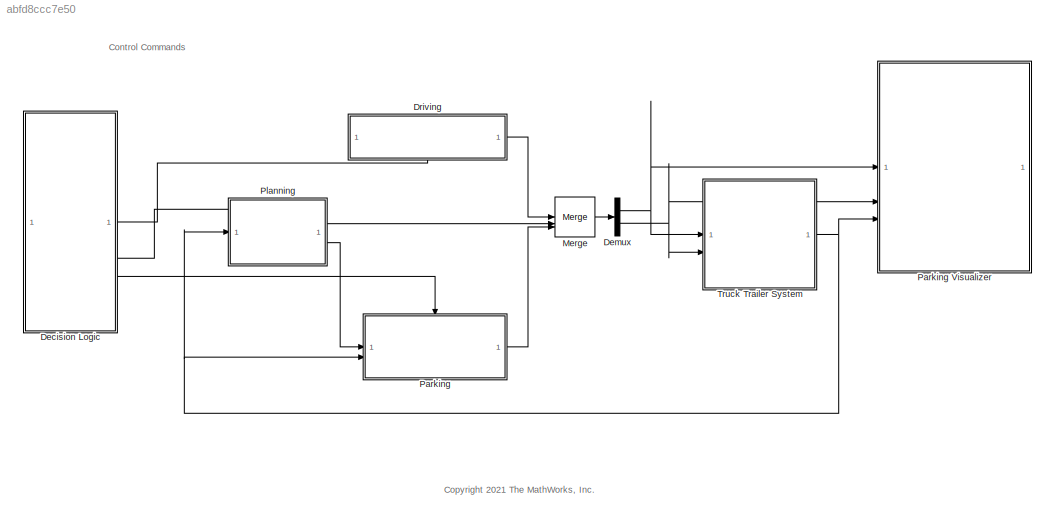
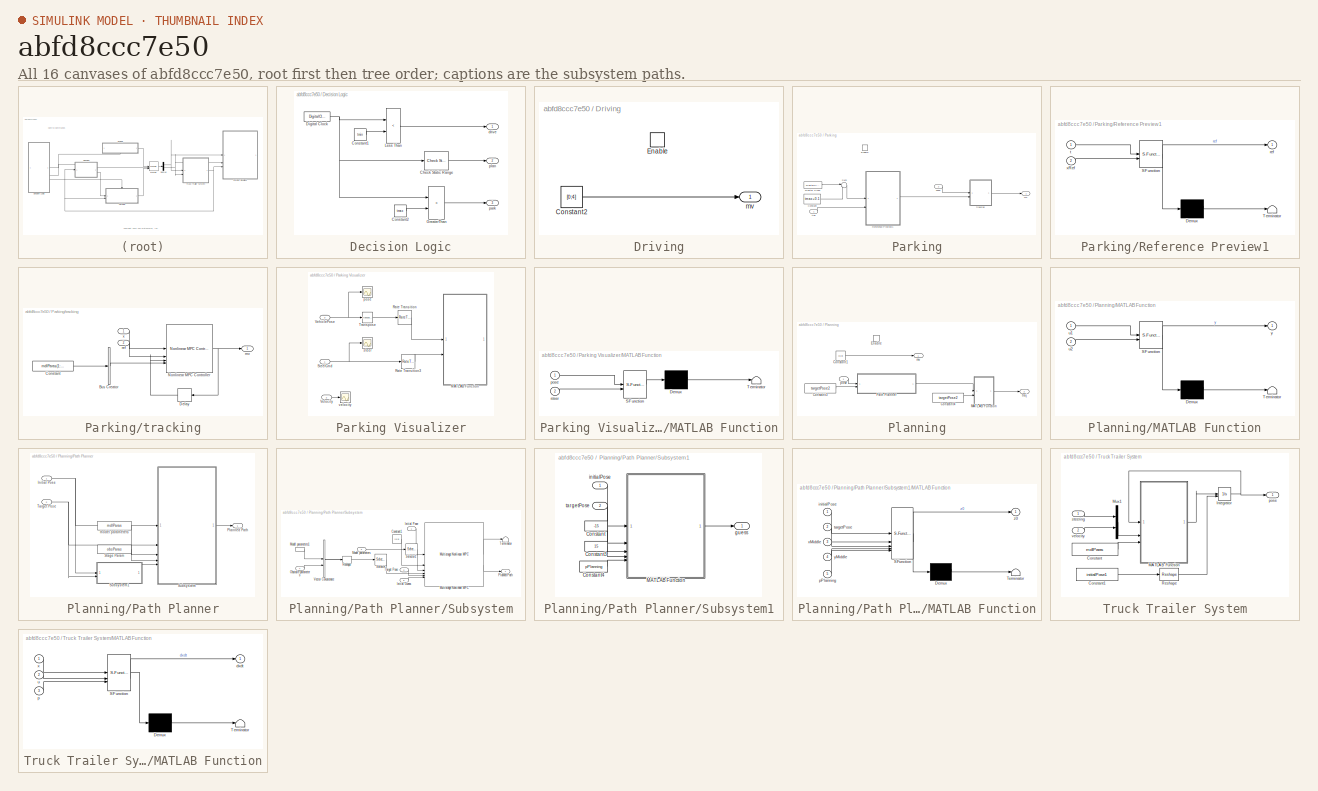
[diagram: thumbnail index - all 16 canvases of the model, root first then tree order]
MODEL slx_abfd8ccc7e50
KIND model
CONFIG AbsTol = auto
CONFIG EnableMultiTasking = off
CONFIG FixedStep = auto
CONFIG MaxStep = auto
CONFIG MinStep = auto
CONFIG RelTol = 1e-3
CONFIG SampleTimeConstraint = Unconstrained
CONFIG SolverName = VariableStepAuto
CONFIG StartTime = 0.0
CONFIG StopTime = 30
BLOCK [SubSystem] Decision Logic
BLOCK [Reference] Decision Logic/Check Static Range  REF=simulink/Model
Verification/Check 
Static Range
  Description = tmin <= u <= tmax
  SourceBlock = simulink/Model\nVerification/Check \nStatic Range
  SourceType = Checks_SRange
BLOCK [Constant] Decision Logic/Constant1
  Value = tmin
BLOCK [Constant] Decision Logic/Constant2
  Value = tmax
BLOCK [DigitalClock] Decision Logic/Digital Clock
  SampleTime = 0.1
BLOCK [RelationalOperator] Decision Logic/GreaterThan
  InputSameDT = off
  Operator = >
  OutDataTypeStr = boolean
  RndMeth = Simplest
BLOCK [RelationalOperator] Decision Logic/Less Than
  InputSameDT = off
  Operator = <
  OutDataTypeStr = boolean
  RndMeth = Simplest
BLOCK [Outport] Decision Logic/drive
BLOCK [Outport] Decision Logic/park
  Port = 3
BLOCK [Outport] Decision Logic/plan
  Port = 2
BLOCK [Demux] Demux
  Outputs = 2
BLOCK [SubSystem] Driving
  TreatAsAtomicUnit = on
BLOCK [Constant] Driving/Constant2
  Value = [0;4]
  VectorParams1D = off
BLOCK [EnablePort] Driving/Enable
  StatesWhenEnabling = reset
BLOCK [Outport] Driving/mv
BLOCK [Merge] Merge
  Inputs = 3
BLOCK [SubSystem] Parking
  TreatAsAtomicUnit = on
BLOCK [SubSystem] Parking Visualizer
BLOCK [SubSystem] Parking Visualizer/MATLAB Function
  ErrorFcn = Stateflow.Translate.translate
  PermitHierarchicalResolution = ExplicitOnly
  SFBlockType = MATLAB Function
  TreatAsAtomicUnit = on
BLOCK [Demux] Parking Visualizer/MATLAB Function/ Demux 
  Outputs = 1
BLOCK [S-Function] Parking Visualizer/MATLAB Function/ SFunction 
  EnableBusSupport = off
  FunctionName = sf_sfun
  Parameters = truckDimensions
  PortCounts = [2 1]
  SFcnIsStateOwnerBlock = off
  SFunctionDeploymentMode = off
  Tag = Stateflow S-Function 3
BLOCK [Terminator] Parking Visualizer/MATLAB Function/ Terminator 
BLOCK [Inport] Parking Visualizer/MATLAB Function/pose
BLOCK [Inport] Parking Visualizer/MATLAB Function/steer
  Port = 2
BLOCK [RateTransition] Parking Visualizer/Rate Transition
  OutPortSampleTime = 0.1
BLOCK [RateTransition] Parking Visualizer/Rate Transition3
  OutPortSampleTime = 0.1
BLOCK [Inport] Parking Visualizer/SteerCmd
BLOCK [Math] Parking Visualizer/Transpose
  Operator = transpose
BLOCK [Inport] Parking Visualizer/VehiclePose
  Port = 3
BLOCK [Inport] Parking Visualizer/Velocity
  Port = 2
BLOCK [Scope] Parking Visualizer/pose
  Floating = off
  NumInputPorts = 1
  ScopeSpecificationString = Simulink.scopes.TimeScopeBlockCfg('CurrentConfiguration', extmgr.ConfigurationSet(extmgr.Configuration('Core','General UI',true),extmgr.Configuration('Core','Source UI',true),extmgr.Configuration('Sources','WiredSimulink',true,'DataLoggingVariableName','ScopeData1'),extmgr.Configuration('Visuals','Time Domain',true,'SerializedDisplays',{struct('MinYLimReal','-34.58119','MaxYLimReal','11.23073','YL...<+1426ch>
BLOCK [Scope] Parking Visualizer/steer
  Floating = off
  NumInputPorts = 1
  ScopeSpecificationString = Simulink.scopes.TimeScopeBlockCfg('CurrentConfiguration', extmgr.ConfigurationSet(extmgr.Configuration('Core','General UI',true),extmgr.Configuration('Core','Source UI',true),extmgr.Configuration('Sources','WiredSimulink',true,'DataLoggingVariableName','ScopeData2'),extmgr.Configuration('Visuals','Time Domain',true,'SerializedDisplays',{struct('MinYLimReal','-0.98175','MaxYLimReal','0.98175','YLab...<+1367ch>
BLOCK [Scope] Parking Visualizer/velocity
  Floating = off
  NumInputPorts = 1
  ScopeSpecificationString = Simulink.scopes.TimeScopeBlockCfg('CurrentConfiguration', extmgr.ConfigurationSet(extmgr.Configuration('Core','General UI',true),extmgr.Configuration('Core','Source UI',true),extmgr.Configuration('Sources','WiredSimulink',true,'DataLoggingVariableName','ScopeData1'),extmgr.Configuration('Visuals','Time Domain',true,'SerializedDisplays',{struct('MinYLimReal','-3.67729','MaxYLimReal','5.96414','YLab...<+1367ch>
BLOCK [Constant] Parking/Constant
  Value = tmax+0.1
BLOCK [DigitalClock] Parking/Digital Clock
  SampleTime = 0.1
BLOCK [EnablePort] Parking/Enable
  StatesWhenEnabling = reset
BLOCK [SubSystem] Parking/Reference Preview1
  ErrorFcn = Stateflow.Translate.translate
  PermitHierarchicalResolution = ExplicitOnly
  SFBlockType = MATLAB Function
  TreatAsAtomicUnit = on
BLOCK [Demux] Parking/Reference Preview1/ Demux 
  Outputs = 1
BLOCK [S-Function] Parking/Reference Preview1/ SFunction 
  EnableBusSupport = off
  FunctionName = sf_sfun
  Parameters = Duration,Ts,pTracking
  PortCounts = [2 2]
  SFcnIsStateOwnerBlock = off
  SFunctionDeploymentMode = off
  Tag = Stateflow S-Function 5
BLOCK [Terminator] Parking/Reference Preview1/ Terminator 
BLOCK [Outport] Parking/Reference Preview1/ref
  VectorParamsAs1DForOutWhenUnconnected = off
BLOCK [Inport] Parking/Reference Preview1/t
BLOCK [Inport] Parking/Reference Preview1/xRef
  Port = 2
BLOCK [Sum] Parking/Sum
  Inputs = |+-
BLOCK [Outport] Parking/mv
BLOCK [Inport] Parking/pose
  Port = 2
BLOCK [SubSystem] Parking/tracking
BLOCK [BusCreator] Parking/tracking/Bus Creator
  DisplayOption = bar
  InheritFromInputs = off
  Inputs = 1
  NonVirtualBus = on
  OutDataTypeStr = Bus: parasBusObject
BLOCK [Constant] Parking/tracking/Constant
  Value = mdlParas(1:3)
BLOCK [Delay] Parking/tracking/Delay
  DelayLength = 1
  InputPortMap = u0
  NameLocation = top
BLOCK [Reference] Parking/tracking/Nonlinear MPC Controller  REF=mpclib/Nonlinear MPC Controller  (lib defined in mdl_ae329e0e0455)
  SCDEnableBlockLinearizationSpecification = on
  SourceBlock = mpclib/Nonlinear MPC Controller
  SourceType = NonlinearMPC
BLOCK [Outport] Parking/tracking/mv
BLOCK [Inport] Parking/tracking/ref
  Port = 2
BLOCK [Inport] Parking/tracking/x
BLOCK [Inport] Parking/traj
BLOCK [SubSystem] Planning
  TreatAsAtomicUnit = on
BLOCK [Constant] Planning/Constant1
  Value = [0;0]
  VectorParams1D = off
BLOCK [Constant] Planning/Constant3
  Value = targetPose2
BLOCK [Constant] Planning/Constant4
  Value = targetPose2
BLOCK [EnablePort] Planning/Enable
  StatesWhenEnabling = reset
BLOCK [SubSystem] Planning/MATLAB Function
  ErrorFcn = Stateflow.Translate.translate
  PermitHierarchicalResolution = ExplicitOnly
  SFBlockType = MATLAB Function
  TreatAsAtomicUnit = on
BLOCK [Demux] Planning/MATLAB Function/ Demux 
  Outputs = 1
BLOCK [S-Function] Planning/MATLAB Function/ SFunction 
  EnableBusSupport = off
  FunctionName = sf_sfun
  PortCounts = [2 2]
  SFcnIsStateOwnerBlock = off
  SFunctionDeploymentMode = off
  Tag = Stateflow S-Function 6
BLOCK [Terminator] Planning/MATLAB Function/ Terminator 
BLOCK [Inport] Planning/MATLAB Function/u1
BLOCK [Inport] Planning/MATLAB Function/u2
  Port = 2
BLOCK [Outport] Planning/MATLAB Function/y
BLOCK [SubSystem] Planning/Path Planner
BLOCK [Inport] Planning/Path Planner/Initial Pose
BLOCK [Outport] Planning/Path Planner/Planned Path
BLOCK [Constant] Planning/Path Planner/Stage Param
  Value = obsParas
  VectorParams1D = off
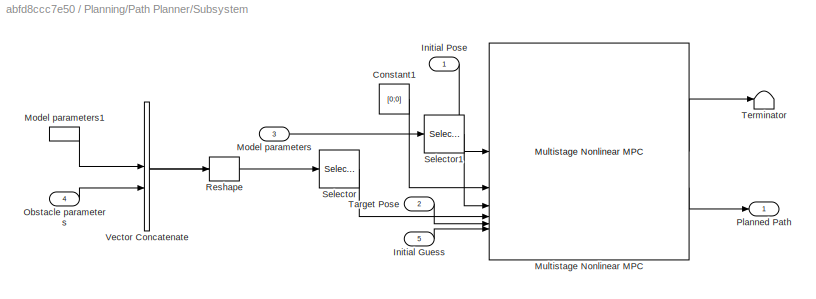
BLOCK [SubSystem] Planning/Path Planner/Subsystem
BLOCK [Constant] Planning/Path Planner/Subsystem/Constant1
  Value = [0;0]
BLOCK [Inport] Planning/Path Planner/Subsystem/Initial Guess
  Port = 5
BLOCK [Inport] Planning/Path Planner/Subsystem/Initial Pose
BLOCK [Inport] Planning/Path Planner/Subsystem/Model parameters
  Port = 3
BLOCK [InportShadow] Planning/Path Planner/Subsystem/Model parameters1
  Port = 3
BLOCK [Reference] Planning/Path Planner/Subsystem/Multistage Nonlinear MPC  REF=mpclib/Multistage Nonlinear MPC  (lib defined in mdl_ae329e0e0455)
  SCDEnableBlockLinearizationSpecification = on
  SourceBlock = mpclib/Multistage Nonlinear MPC
  SourceType = NonlinearMPCMultistage
BLOCK [Inport] Planning/Path Planner/Subsystem/Obstacle parameters
  Port = 4
BLOCK [Outport] Planning/Path Planner/Subsystem/Planned Path
BLOCK [Reshape] Planning/Path Planner/Subsystem/Reshape
  OutputDimensionality = Customize
  OutputDimensions = [1,numParas]
BLOCK [Selector] Planning/Path Planner/Subsystem/Selector
  IndexOptions = Select all,Index vector (dialog)
  Indices = [1 3],repmat([1:numParas]',pPlanning,1)
  InputPortWidth = 3
  NumberOfDimensions = 2
  OutputSizes = 1,1
BLOCK [Selector] Planning/Path Planner/Subsystem/Selector1
  IndexOptions = Index vector (dialog)
  Indices = [1 2 3]
  InputPortWidth = 5
  OutputSizes = 1
BLOCK [Inport] Planning/Path Planner/Subsystem/Target Pose
  Port = 2
BLOCK [Terminator] Planning/Path Planner/Subsystem/Terminator
BLOCK [Concatenate] Planning/Path Planner/Subsystem/Vector Concatenate
BLOCK [SubSystem] Planning/Path Planner/Subsystem1
BLOCK [Constant] Planning/Path Planner/Subsystem1/Constant
  Value = -15
BLOCK [Constant] Planning/Path Planner/Subsystem1/Constant3
  Value = 15
BLOCK [Constant] Planning/Path Planner/Subsystem1/Constant4
  Value = pPlanning
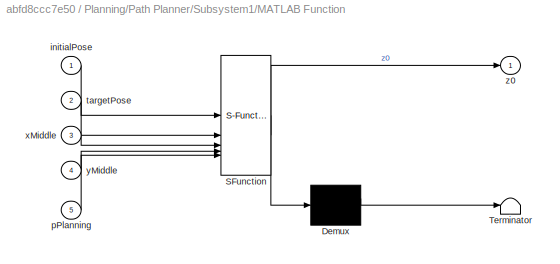
BLOCK [SubSystem] Planning/Path Planner/Subsystem1/MATLAB Function
  ErrorFcn = Stateflow.Translate.translate
  PermitHierarchicalResolution = ExplicitOnly
  SFBlockType = MATLAB Function
  TreatAsAtomicUnit = on
BLOCK [Demux] Planning/Path Planner/Subsystem1/MATLAB Function/ Demux 
  Outputs = 1
BLOCK [S-Function] Planning/Path Planner/Subsystem1/MATLAB Function/ SFunction 
  EnableBusSupport = off
  FunctionName = sf_sfun
  PortCounts = [5 2]
  SFcnIsStateOwnerBlock = off
  SFunctionDeploymentMode = off
  Tag = Stateflow S-Function 1
BLOCK [Terminator] Planning/Path Planner/Subsystem1/MATLAB Function/ Terminator 
BLOCK [Inport] Planning/Path Planner/Subsystem1/MATLAB Function/initialPose
BLOCK [Inport] Planning/Path Planner/Subsystem1/MATLAB Function/pPlanning
  Port = 5
BLOCK [Inport] Planning/Path Planner/Subsystem1/MATLAB Function/targetPose
  Port = 2
BLOCK [Inport] Planning/Path Planner/Subsystem1/MATLAB Function/xMiddle
  Port = 3
BLOCK [Inport] Planning/Path Planner/Subsystem1/MATLAB Function/yMiddle
  Port = 4
BLOCK [Outport] Planning/Path Planner/Subsystem1/MATLAB Function/z0
BLOCK [Outport] Planning/Path Planner/Subsystem1/guess
BLOCK [Inport] Planning/Path Planner/Subsystem1/initialPose
BLOCK [Inport] Planning/Path Planner/Subsystem1/targetPose
  Port = 2
BLOCK [Inport] Planning/Path Planner/Target Pose
  Port = 2
BLOCK [Constant] Planning/Path Planner/model parameters
  Value = mdlParas
  VectorParams1D = off
BLOCK [Outport] Planning/mv
BLOCK [Inport] Planning/pose
BLOCK [Outport] Planning/traj
  Port = 2
BLOCK [SubSystem] Truck Trailer System
BLOCK [Constant] Truck Trailer System/Constant
  Value = mdlParas
BLOCK [Constant] Truck Trailer System/Constant1
  Value = initialPose1
BLOCK [Integrator] Truck Trailer System/Integrator
  InitialConditionSource = external
BLOCK [SubSystem] Truck Trailer System/MATLAB Function
  ErrorFcn = Stateflow.Translate.translate
  PermitHierarchicalResolution = ExplicitOnly
  SFBlockType = MATLAB Function
  TreatAsAtomicUnit = on
BLOCK [Demux] Truck Trailer System/MATLAB Function/ Demux 
  Outputs = 1
BLOCK [S-Function] Truck Trailer System/MATLAB Function/ SFunction 
  EnableBusSupport = off
  FunctionName = sf_sfun
  PortCounts = [3 2]
  SFcnIsStateOwnerBlock = off
  SFunctionDeploymentMode = off
  Tag = Stateflow S-Function 2
BLOCK [Terminator] Truck Trailer System/MATLAB Function/ Terminator 
BLOCK [Outport] Truck Trailer System/MATLAB Function/dxdt
BLOCK [Inport] Truck Trailer System/MATLAB Function/p
  Port = 3
BLOCK [Inport] Truck Trailer System/MATLAB Function/u
  Port = 2
BLOCK [Inport] Truck Trailer System/MATLAB Function/x
BLOCK [Mux] Truck Trailer System/Mux1
  DisplayOption = bar
  Inputs = 2
BLOCK [Reshape] Truck Trailer System/Reshape
  OutputDimensionality = Customize
  OutputDimensions = [4,1]
BLOCK [Outport] Truck Trailer System/pose
BLOCK [Inport] Truck Trailer System/steering
BLOCK [Inport] Truck Trailer System/velocity
  Port = 2
ANNOTATION (root): Control Commands
ANNOTATION (root): <copyright redacted>
LINE Decision Logic/Check Static Range:1 -> Decision Logic/plan:1
LINE Decision Logic/Constant1:1 -> Decision Logic/Less Than:2
LINE Decision Logic/Constant2:1 -> Decision Logic/GreaterThan:2
NET Decision Logic/Digital Clock:1 -> Decision Logic/Check Static Range:1, Decision Logic/GreaterThan:1, Decision Logic/Less Than:1
LINE Decision Logic/GreaterThan:1 -> Decision Logic/park:1
LINE Decision Logic/Less Than:1 -> Decision Logic/drive:1
LINE Decision Logic:1 -> Driving:enable
LINE Decision Logic:2 -> Planning:enable
LINE Decision Logic:3 -> Parking:enable
NET Demux:1 -> Parking Visualizer:1, Truck Trailer System:1
NET Demux:2 -> Parking Visualizer:2, Truck Trailer System:2
LINE Driving/Constant2:1 -> Driving/mv:1
LINE Driving:1 -> Merge:1
LINE Merge:1 -> Demux:1
LINE Parking Visualizer/Rate Transition3:1 -> Parking Visualizer/MATLAB Function:2
LINE Parking Visualizer/Rate Transition:1 -> Parking Visualizer/MATLAB Function:1
NET Parking Visualizer/SteerCmd:1 -> Parking Visualizer/Rate Transition3:1, Parking Visualizer/steer:1
LINE Parking Visualizer/Transpose:1 -> Parking Visualizer/Rate Transition:1
NET Parking Visualizer/VehiclePose:1 -> Parking Visualizer/Transpose:1, Parking Visualizer/pose:1
LINE Parking Visualizer/Velocity:1 -> Parking Visualizer/velocity:1
LINE Parking/Constant:1 -> Parking/Sum:2
LINE Parking/Digital Clock:1 -> Parking/Sum:1
LINE Parking/Reference Preview1:1 -> Parking/tracking:2
LINE Parking/Sum:1 -> Parking/Reference Preview1:1
LINE Parking/pose:1 -> Parking/tracking:1
LINE Parking/tracking/Bus Creator:1 -> Parking/tracking/Nonlinear MPC Controller:4
LINE Parking/tracking/Constant:1 -> Parking/tracking/Bus Creator:1
LINE Parking/tracking/Delay:1 -> Parking/tracking/Nonlinear MPC Controller:3
NET Parking/tracking/Nonlinear MPC Controller:1 -> Parking/tracking/Delay:1, Parking/tracking/mv:1
LINE Parking/tracking/ref:1 -> Parking/tracking/Nonlinear MPC Controller:2
LINE Parking/tracking/x:1 -> Parking/tracking/Nonlinear MPC Controller:1
LINE Parking/tracking:1 -> Parking/mv:1
LINE Parking/traj:1 -> Parking/Reference Preview1:2
LINE Parking:1 -> Merge:3
LINE Planning/Constant1:1 -> Planning/mv:1
LINE Planning/Constant3:1 -> Planning/Path Planner:2
LINE Planning/Constant4:1 -> Planning/MATLAB Function:2
LINE Planning/MATLAB Function:1 -> Planning/traj:1
NET Planning/Path Planner/Initial Pose:1 -> Planning/Path Planner/Subsystem1:1, Planning/Path Planner/Subsystem:1
LINE Planning/Path Planner/Stage Param:1 -> Planning/Path Planner/Subsystem:4
LINE Planning/Path Planner/Subsystem/Constant1:1 -> Planning/Path Planner/Subsystem/Multistage Nonlinear MPC:2
LINE Planning/Path Planner/Subsystem/Initial Guess:1 -> Planning/Path Planner/Subsystem/Multistage Nonlinear MPC:6
LINE Planning/Path Planner/Subsystem/Initial Pose:1 -> Planning/Path Planner/Subsystem/Multistage Nonlinear MPC:1
LINE Planning/Path Planner/Subsystem/Model parameters1:1 -> Planning/Path Planner/Subsystem/Vector Concatenate:1
LINE Planning/Path Planner/Subsystem/Model parameters:1 -> Planning/Path Planner/Subsystem/Selector1:1
LINE Planning/Path Planner/Subsystem/Multistage Nonlinear MPC:1 -> Planning/Path Planner/Subsystem/Terminator:1
LINE Planning/Path Planner/Subsystem/Multistage Nonlinear MPC:2 -> Planning/Path Planner/Subsystem/Planned Path:1
LINE Planning/Path Planner/Subsystem/Obstacle parameters:1 -> Planning/Path Planner/Subsystem/Vector Concatenate:2
LINE Planning/Path Planner/Subsystem/Reshape:1 -> Planning/Path Planner/Subsystem/Selector:1
LINE Planning/Path Planner/Subsystem/Selector1:1 -> Planning/Path Planner/Subsystem/Multistage Nonlinear MPC:3
LINE Planning/Path Planner/Subsystem/Selector:1 -> Planning/Path Planner/Subsystem/Multistage Nonlinear MPC:4
LINE Planning/Path Planner/Subsystem/Target Pose:1 -> Planning/Path Planner/Subsystem/Multistage Nonlinear MPC:5
LINE Planning/Path Planner/Subsystem/Vector Concatenate:1 -> Planning/Path Planner/Subsystem/Reshape:1
LINE Planning/Path Planner/Subsystem1/Constant3:1 -> Planning/Path Planner/Subsystem1/MATLAB Function:4
LINE Planning/Path Planner/Subsystem1/Constant4:1 -> Planning/Path Planner/Subsystem1/MATLAB Function:5
LINE Planning/Path Planner/Subsystem1/Constant:1 -> Planning/Path Planner/Subsystem1/MATLAB Function:3
LINE Planning/Path Planner/Subsystem1/MATLAB Function:1 -> Planning/Path Planner/Subsystem1/guess:1
LINE Planning/Path Planner/Subsystem1/initialPose:1 -> Planning/Path Planner/Subsystem1/MATLAB Function:1
LINE Planning/Path Planner/Subsystem1/targetPose:1 -> Planning/Path Planner/Subsystem1/MATLAB Function:2
LINE Planning/Path Planner/Subsystem1:1 -> Planning/Path Planner/Subsystem:5
LINE Planning/Path Planner/Subsystem:1 -> Planning/Path Planner/Planned Path:1
NET Planning/Path Planner/Target Pose:1 -> Planning/Path Planner/Subsystem1:2, Planning/Path Planner/Subsystem:2
LINE Planning/Path Planner/model parameters:1 -> Planning/Path Planner/Subsystem:3
LINE Planning/Path Planner:1 -> Planning/MATLAB Function:1
LINE Planning/pose:1 -> Planning/Path Planner:1
LINE Planning:1 -> Merge:2
LINE Planning:2 -> Parking:1
LINE Truck Trailer System/Constant1:1 -> Truck Trailer System/Reshape:1
LINE Truck Trailer System/Constant:1 -> Truck Trailer System/MATLAB Function:3
NET Truck Trailer System/Integrator:1 -> Truck Trailer System/MATLAB Function:1, Truck Trailer System/pose:1
LINE Truck Trailer System/MATLAB Function:1 -> Truck Trailer System/Integrator:1
LINE Truck Trailer System/Mux1:1 -> Truck Trailer System/MATLAB Function:2
LINE Truck Trailer System/Reshape:1 -> Truck Trailer System/Integrator:2
LINE Truck Trailer System/steering:1 -> Truck Trailer System/Mux1:1
LINE Truck Trailer System/velocity:1 -> Truck Trailer System/Mux1:2
NET Truck Trailer System:1 -> Parking Visualizer:3, Parking:2, Planning:1
note: NET lines group one-source signal fan-out (src -> all destinations, sorted); 1:1 wires keep LINE
CHART Planning/Path Planner/Subsystem1/MATLAB Function states=1 transitions=1
  STATE_LABEL 'eML_blk_kernel()'
  STATE_LABEL 'SCRIPT:\nfunction z0 = fcn(initialPose,targetPose,xMiddle,yMiddle,pPlanning)\n\n[z0,~,~] = mpcGenerateInitialGuess(initialPose,targetPose,xMiddle,yMiddle,pPlanning);\n'
CHART Truck Trailer System/MATLAB Function states=1 transitions=1
  STATE_LABEL 'eML_blk_kernel()'
  STATE_LABEL 'SCRIPT:\nfunction dxdt = fcn(x, u,p)%#codegen\ndxdt = zeros(4,1);\ndxdt = stateFcnTruck(x, u, p);\n\n'
CHART Parking Visualizer/MATLAB Function states=1 transitions=1
  STATE_LABEL 'eML_blk_kernel()'
  STATE_LABEL "SCRIPT:\nfunction visualizeParkingValet(pose, steer, truckDimensions)\n\n%visualizePath Display simulation results.\n\ncoder.extrinsic('helperSLVisualizeParkingTruck');\n\nhelperSLVisualizeParkingTruck(pose, steer, truckDimensions)"
CHART Parking/Reference Preview1 states=1 transitions=1
  STATE_LABEL 'eML_blk_kernel()'
  STATE_LABEL 'SCRIPT:\nfunction ref = fcn(t,xRef, Ts, pTracking, Duration)\nTend = Duration;\nT = t+(1:pTracking)*Ts;\nT = min(T,Tend);\ntime = Ts*(1:length(xRef));\nref = interp1(time,xRef,T);\n'
CHART Planning/MATLAB Function states=1 transitions=1
  STATE_LABEL 'eML_blk_kernel()'
  STATE_LABEL 'SCRIPT:\nfunction y = fcn(u1,u2)\n\ntraj = mpcInterpolatePathSL(u1,u2);\nTs = 0.1;\nDuration = 30;\nTsteps = Duration/Ts;\ny = [traj;repmat(traj(end,:),Tsteps-size(traj,1),1)];\n'
CHART  states=0 transitions=0
CHART  states=0 transitions=0
CHART  states=0 transitions=0
CHART  states=0 transitions=0
CHART  states=0 transitions=0
